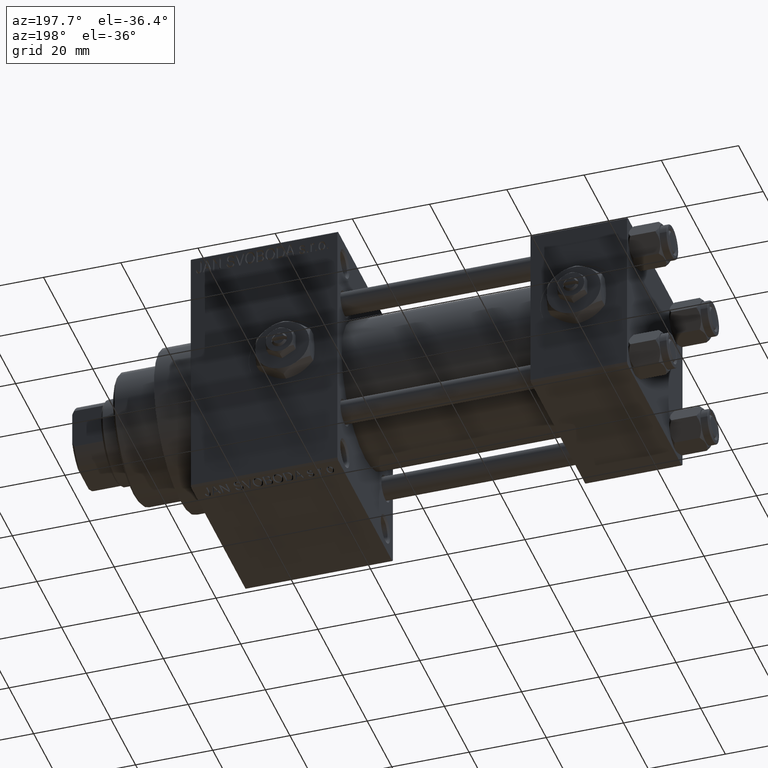
[diagram: clean part render]
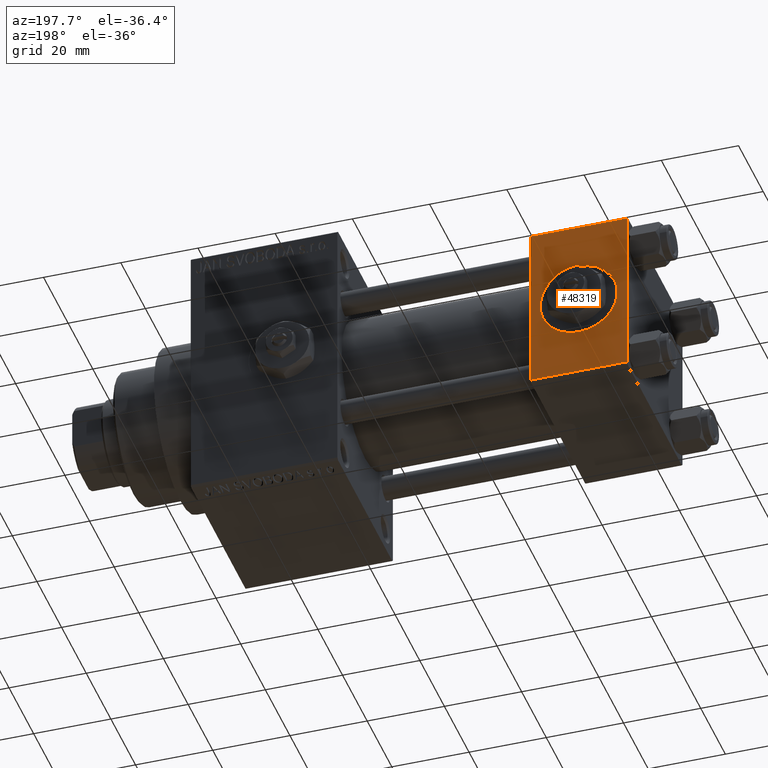
[diagram: same view with one face highlighted and labeled with its STEP entity id]
A machine part, auxiliary view. The second image highlights one B-rep face of the part: STEP entity #48319.
In plain terms, the highlighted planar face has unit normal (0, 1, 0).
Its self-contained STEP definition (entity closure, byte-faithful):
#479 = VERTEX_POINT ( 'NONE', #25123 ) ;
#2149 = CARTESIAN_POINT ( 'NONE',  ( 12.50000000000000000, 22.50000000000000000, 9.999999999999996447 ) ) ;
#2533 = ORIENTED_EDGE ( 'NONE', *, *, #10756, .T. ) ;
#2864 = EDGE_CURVE ( 'NONE', #38002, #479, #12761, .T. ) ;
#3215 = AXIS2_PLACEMENT_3D ( 'NONE', #14751, #41597, #7301 ) ;
#3947 = CARTESIAN_POINT ( 'NONE',  ( 12.50000000000000000, 22.50000000000000000, 0.000000000000000000 ) ) ;
#4236 = ORIENTED_EDGE ( 'NONE', *, *, #29919, .F. ) ;
#7053 = DIRECTION ( 'NONE',  ( 0.000000000000000000, -0.000000000000000000, 1.000000000000000000 ) ) ;
#7301 = DIRECTION ( 'NONE',  ( 0.000000000000000000, 0.000000000000000000, 1.000000000000000000 ) ) ;
#7398 = DIRECTION ( 'NONE',  ( 0.000000000000000000, 0.000000000000000000, -1.000000000000000000 ) ) ;
#7981 = CIRCLE ( 'NONE', #3215, 9.999999999999996447 ) ;
#10756 = EDGE_CURVE ( 'NONE', #27518, #33601, #34079, .T. ) ;
#11189 = VERTEX_POINT ( 'NONE', #2149 ) ;
#11640 = VECTOR ( 'NONE', #44335, 1000.000000000000000 ) ;
#12761 = LINE ( 'NONE', #46337, #21828 ) ;
#13256 = CARTESIAN_POINT ( 'NONE',  ( 25.00000000000000000, 22.50000000000000000, 22.50000000000000355 ) ) ;
#14745 = DIRECTION ( 'NONE',  ( -0.000000000000000000, 1.000000000000000000, 0.000000000000000000 ) ) ;
#14751 = CARTESIAN_POINT ( 'NONE',  ( 12.50000000000000000, 22.50000000000000000, 0.000000000000000000 ) ) ;
#15193 = CARTESIAN_POINT ( 'NONE',  ( 25.00000000000000000, 22.50000000000000000, -21.99999999999998224 ) ) ;
#17232 = VECTOR ( 'NONE', #45534, 1000.000000000000000 ) ;
#17388 = VECTOR ( 'NONE', #7398, 1000.000000000000000 ) ;
#17763 = CARTESIAN_POINT ( 'NONE',  ( 12.50000000000000178, 22.50000000000000000, -9.999999999999996447 ) ) ;
#18563 = CARTESIAN_POINT ( 'NONE',  ( 0.000000000000000000, 22.50000000000000000, 22.50000000000000355 ) ) ;
#18927 = EDGE_CURVE ( 'NONE', #479, #27518, #32873, .T. ) ;
#20333 = CARTESIAN_POINT ( 'NONE',  ( 0.000000000000000000, 22.50000000000000000, 21.99999999999999645 ) ) ;
#21828 = VECTOR ( 'NONE', #43343, 1000.000000000000000 ) ;
#22681 = ORIENTED_EDGE ( 'NONE', *, *, #2864, .T. ) ;
#23170 = VERTEX_POINT ( 'NONE', #17763 ) ;
#23891 = AXIS2_PLACEMENT_3D ( 'NONE', #3947, #33525, #44986 ) ;
#25011 = EDGE_CURVE ( 'NONE', #38002, #33601, #41704, .T. ) ;
#25123 = CARTESIAN_POINT ( 'NONE',  ( 25.00000000000000000, 22.50000000000000000, 21.99999999999999645 ) ) ;
#25437 = FACE_BOUND ( 'NONE', #38040, .T. ) ;
#27518 = VERTEX_POINT ( 'NONE', #42273 ) ;
#28626 = EDGE_CURVE ( 'NONE', #11189, #23170, #7981, .T. ) ;
#29919 = EDGE_CURVE ( 'NONE', #23170, #11189, #38985, .T. ) ;
#30857 = ORIENTED_EDGE ( 'NONE', *, *, #18927, .T. ) ;
#32873 = LINE ( 'NONE', #13256, #11640 ) ;
#33090 = ORIENTED_EDGE ( 'NONE', *, *, #28626, .F. ) ;
#33385 = ORIENTED_EDGE ( 'NONE', *, *, #25011, .F. ) ;
#33525 = DIRECTION ( 'NONE',  ( 0.000000000000000000, 1.000000000000000000, 0.000000000000000000 ) ) ;
#33601 = VERTEX_POINT ( 'NONE', #46217 ) ;
#34079 = LINE ( 'NONE', #15193, #17232 ) ;
#38002 = VERTEX_POINT ( 'NONE', #20333 ) ;
#38040 = EDGE_LOOP ( 'NONE', ( #33090, #4236 ) ) ;
#38985 = CIRCLE ( 'NONE', #23891, 9.999999999999996447 ) ;
#39733 = EDGE_LOOP ( 'NONE', ( #30857, #2533, #33385, #22681 ) ) ;
#40612 = FACE_OUTER_BOUND ( 'NONE', #39733, .T. ) ;
#40845 = PLANE ( 'NONE',  #40962 ) ;
#40962 = AXIS2_PLACEMENT_3D ( 'NONE', #41098, #14745, #7053 ) ;
#41098 = CARTESIAN_POINT ( 'NONE',  ( 25.00000000000000000, 22.50000000000000000, 22.50000000000000355 ) ) ;
#41597 = DIRECTION ( 'NONE',  ( 0.000000000000000000, 1.000000000000000000, 0.000000000000000000 ) ) ;
#41704 = LINE ( 'NONE', #18563, #17388 ) ;
#42273 = CARTESIAN_POINT ( 'NONE',  ( 25.00000000000000000, 22.50000000000000000, -21.99999999999996803 ) ) ;
#43343 = DIRECTION ( 'NONE',  ( 1.000000000000000000, 0.000000000000000000, 0.000000000000000000 ) ) ;
#44335 = DIRECTION ( 'NONE',  ( 0.000000000000000000, 0.000000000000000000, -1.000000000000000000 ) ) ;
#44986 = DIRECTION ( 'NONE',  ( 0.000000000000000000, 0.000000000000000000, 1.000000000000000000 ) ) ;
#45534 = DIRECTION ( 'NONE',  ( -1.000000000000000000, 0.000000000000000000, 0.000000000000000000 ) ) ;
#46217 = CARTESIAN_POINT ( 'NONE',  ( 0.000000000000000000, 22.50000000000000000, -21.99999999999996803 ) ) ;
#46337 = CARTESIAN_POINT ( 'NONE',  ( 25.00000000000000000, 22.50000000000000000, 21.99999999999999645 ) ) ;
#48319 = ADVANCED_FACE ( 'NONE', ( #25437, #40612 ), #40845, .T. ) ;